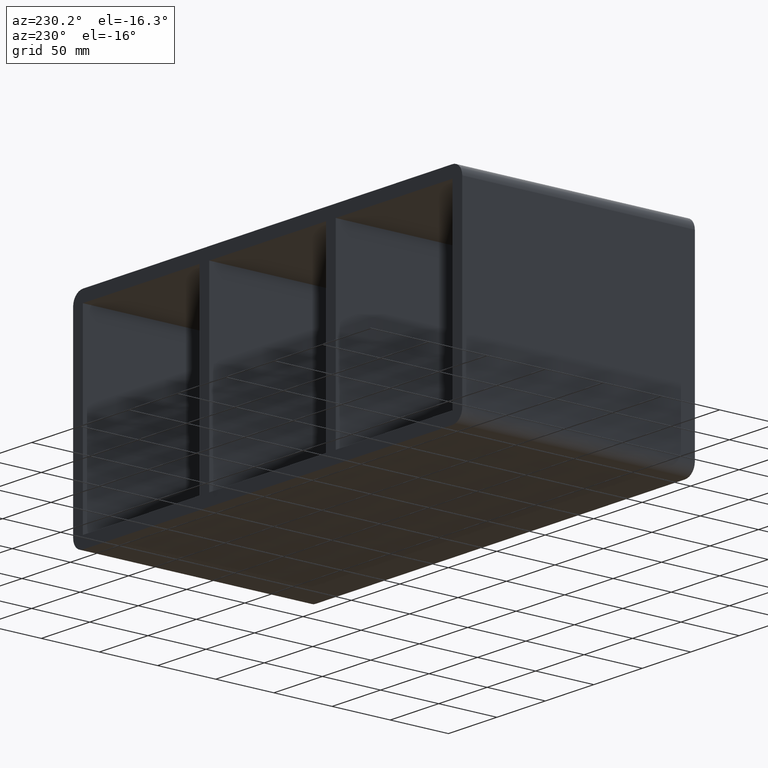
[diagram: clean part render]
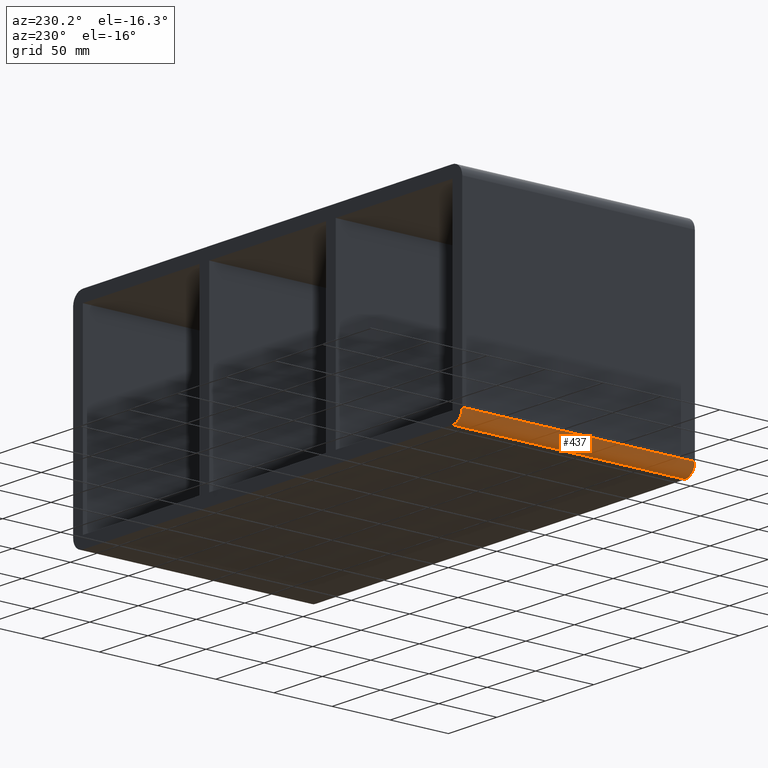
[diagram: same view with one face highlighted and labeled with its STEP entity id]
A machine part, auxiliary view. The second image highlights one B-rep face of the part: STEP entity #437.
In plain terms, the highlighted cylindrical surface (edge-blend (fillet) strip) has radius 10 mm, axis along (0, 1, 0).
Its self-contained STEP definition (entity closure, byte-faithful):
#396=CARTESIAN_POINT('',(-190.75000000000003,0.0,-79.75));
#397=DIRECTION('',(0.0,1.0,0.0));
#398=DIRECTION('',(-0.707106781186547,0.0,-0.707106781186547));
#399=AXIS2_PLACEMENT_3D('',#396,#397,#398);
#400=CYLINDRICAL_SURFACE('',#399,10.0);
#401=CARTESIAN_POINT('',(-200.75000000000003,197.0,-79.75));
#402=VERTEX_POINT('',#401);
#403=CARTESIAN_POINT('',(-190.75000000000003,197.0,-89.75));
#404=VERTEX_POINT('',#403);
#405=CARTESIAN_POINT('',(-190.75000000000003,197.0,-79.75));
#406=DIRECTION('',(0.0,-1.0,0.0));
#407=DIRECTION('',(-0.707106781186547,0.0,-0.707106781186547));
#408=AXIS2_PLACEMENT_3D('',#405,#406,#407);
#409=CIRCLE('',#408,9.999999999999998);
#410=EDGE_CURVE('',#402,#404,#409,.T.);
#411=ORIENTED_EDGE('',*,*,#410,.T.);
#412=CARTESIAN_POINT('',(-190.75000000000003,-3.0,-89.75));
#413=VERTEX_POINT('',#412);
#414=CARTESIAN_POINT('',(-190.75000000000003,197.0,-89.75));
#415=DIRECTION('',(0.0,-1.0,0.0));
#416=VECTOR('',#415,200.0);
#417=LINE('',#414,#416);
#418=EDGE_CURVE('',#404,#413,#417,.T.);
#419=ORIENTED_EDGE('',*,*,#418,.T.);
#420=CARTESIAN_POINT('',(-200.75000000000003,-3.0,-79.75));
#421=VERTEX_POINT('',#420);
#422=CARTESIAN_POINT('',(-190.75000000000003,-3.0,-79.75));
#423=DIRECTION('',(0.0,1.0,0.0));
#424=DIRECTION('',(-0.707106781186547,0.0,-0.707106781186547));
#425=AXIS2_PLACEMENT_3D('',#422,#423,#424);
#426=CIRCLE('',#425,9.999999999999998);
#427=EDGE_CURVE('',#413,#421,#426,.T.);
#428=ORIENTED_EDGE('',*,*,#427,.T.);
#429=CARTESIAN_POINT('',(-200.75000000000003,-3.0,-79.75));
#430=DIRECTION('',(0.0,1.0,0.0));
#431=VECTOR('',#430,200.0);
#432=LINE('',#429,#431);
#433=EDGE_CURVE('',#421,#402,#432,.T.);
#434=ORIENTED_EDGE('',*,*,#433,.T.);
#435=EDGE_LOOP('',(#411,#419,#428,#434));
#436=FACE_OUTER_BOUND('',#435,.T.);
#437=ADVANCED_FACE('',(#436),#400,.T.);